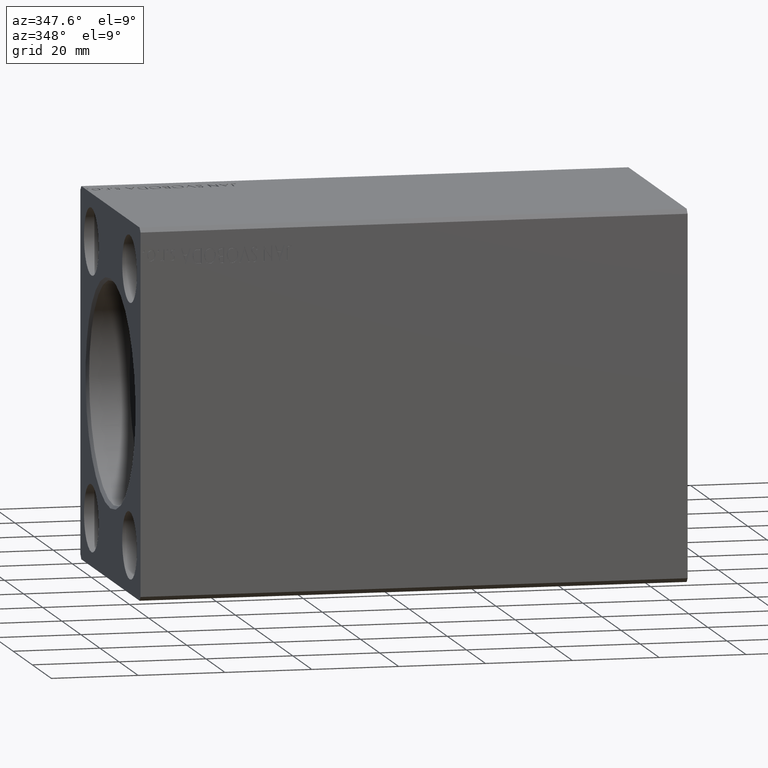
[diagram: clean part render]
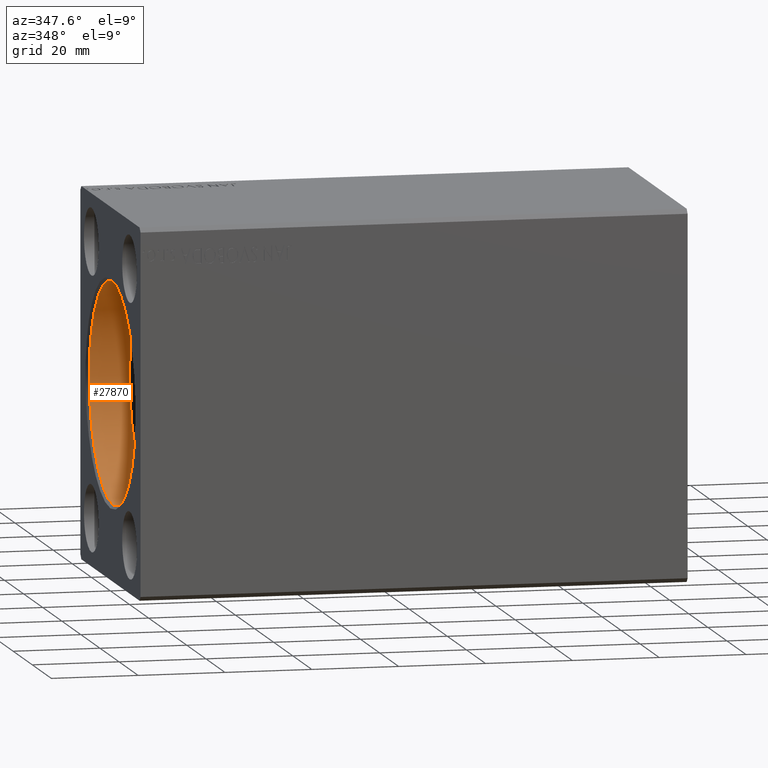
[diagram: same view with one face highlighted and labeled with its STEP entity id]
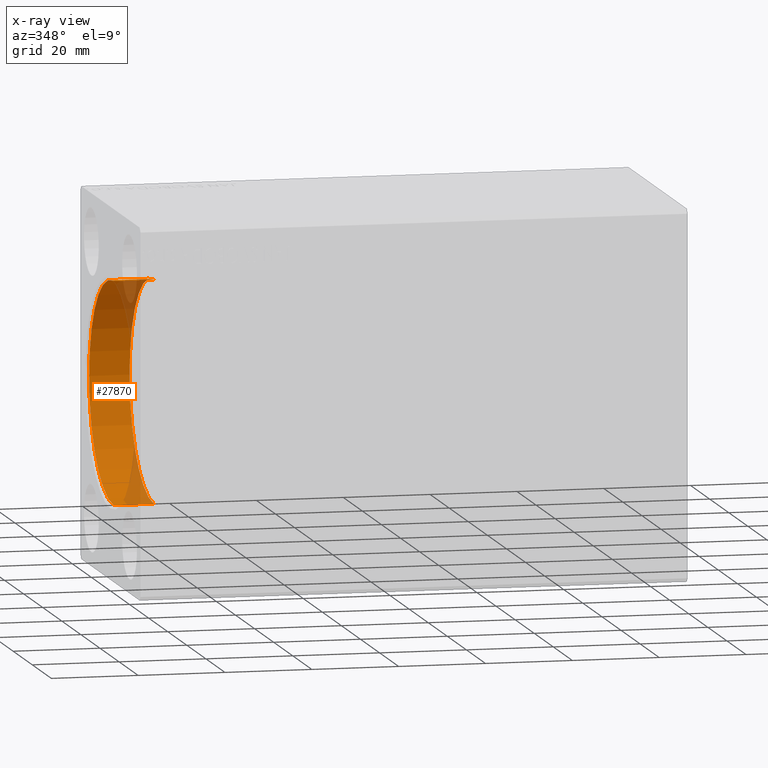
[diagram: x-ray of the same camera — body ghosted, the highlighted face saturated]
A machine part, auxiliary view. The second image highlights one B-rep face of the part: STEP entity #27870.
The next image is the same camera in x-ray: the body ghosted, the highlighted face saturated — about 15% of this face is hidden behind the body in this view.
In plain terms, the highlighted cylindrical surface (partial cylindrical patch) has radius 25.5 mm, axis along (-1, -0, -0).
Its self-contained STEP definition (entity closure, byte-faithful):
#1609 = DIRECTION ( 'NONE',  ( 0.000000000000000000, 0.000000000000000000, 1.000000000000000000 ) ) ;
#3416 = EDGE_LOOP ( 'NONE', ( #35514, #21662, #13050, #21675 ) ) ;
#4124 = AXIS2_PLACEMENT_3D ( 'NONE', #24393, #5433, #1609 ) ;
#5107 = DIRECTION ( 'NONE',  ( 0.000000000000000000, 0.000000000000000000, 1.000000000000000000 ) ) ;
#5433 = DIRECTION ( 'NONE',  ( -1.000000000000000000, 0.000000000000000000, 0.000000000000000000 ) ) ;
#7038 = VERTEX_POINT ( 'NONE', #41693 ) ;
#8273 = LINE ( 'NONE', #11494, #38647 ) ;
#9470 = CARTESIAN_POINT ( 'NONE',  ( 0.6999999999999922951, 3.122849337825750222E-15, -25.50000000000000000 ) ) ;
#11494 = CARTESIAN_POINT ( 'NONE',  ( 10.00000000000000000, 0.000000000000000000, 25.50000000000000000 ) ) ;
#11776 = DIRECTION ( 'NONE',  ( -1.000000000000000000, -0.000000000000000000, -0.000000000000000000 ) ) ;
#11924 = VECTOR ( 'NONE', #13614, 1000.000000000000000 ) ;
#11985 = CYLINDRICAL_SURFACE ( 'NONE', #14887, 25.50000000000000000 ) ;
#13050 = ORIENTED_EDGE ( 'NONE', *, *, #23148, .T. ) ;
#13614 = DIRECTION ( 'NONE',  ( -1.000000000000000000, -0.000000000000000000, -0.000000000000000000 ) ) ;
#14887 = AXIS2_PLACEMENT_3D ( 'NONE', #38415, #11776, #5107 ) ;
#17288 = CARTESIAN_POINT ( 'NONE',  ( 0.6999999999999922951, 0.000000000000000000, 0.000000000000000000 ) ) ;
#17912 = DIRECTION ( 'NONE',  ( 0.000000000000000000, 0.000000000000000000, -1.000000000000000000 ) ) ;
#17932 = AXIS2_PLACEMENT_3D ( 'NONE', #17288, #27384, #17912 ) ;
#19751 = VERTEX_POINT ( 'NONE', #37001 ) ;
#20709 = LINE ( 'NONE', #36399, #11924 ) ;
#21662 = ORIENTED_EDGE ( 'NONE', *, *, #37508, .F. ) ;
#21675 = ORIENTED_EDGE ( 'NONE', *, *, #41248, .T. ) ;
#22092 = FACE_OUTER_BOUND ( 'NONE', #3416, .T. ) ;
#23148 = EDGE_CURVE ( 'NONE', #7038, #19751, #8273, .T. ) ;
#24393 = CARTESIAN_POINT ( 'NONE',  ( 10.00000000000000000, 0.000000000000000000, 0.000000000000000000 ) ) ;
#25108 = EDGE_CURVE ( 'NONE', #36659, #38877, #20709, .T. ) ;
#27384 = DIRECTION ( 'NONE',  ( -1.000000000000000000, 0.000000000000000000, 0.000000000000000000 ) ) ;
#27870 = ADVANCED_FACE ( 'NONE', ( #22092 ), #11985, .F. ) ;
#32945 = CIRCLE ( 'NONE', #4124, 25.50000000000000000 ) ;
#34091 = DIRECTION ( 'NONE',  ( -1.000000000000000000, -0.000000000000000000, -0.000000000000000000 ) ) ;
#35074 = CIRCLE ( 'NONE', #17932, 25.50000000000000000 ) ;
#35514 = ORIENTED_EDGE ( 'NONE', *, *, #25108, .F. ) ;
#36399 = CARTESIAN_POINT ( 'NONE',  ( 10.00000000000000000, 3.122849337825750222E-15, -25.50000000000000000 ) ) ;
#36659 = VERTEX_POINT ( 'NONE', #40702 ) ;
#37001 = CARTESIAN_POINT ( 'NONE',  ( 0.6999999999999922951, 0.000000000000000000, 25.50000000000000000 ) ) ;
#37508 = EDGE_CURVE ( 'NONE', #7038, #36659, #32945, .T. ) ;
#38415 = CARTESIAN_POINT ( 'NONE',  ( 10.00000000000000000, 0.000000000000000000, 0.000000000000000000 ) ) ;
#38647 = VECTOR ( 'NONE', #34091, 1000.000000000000000 ) ;
#38877 = VERTEX_POINT ( 'NONE', #9470 ) ;
#40702 = CARTESIAN_POINT ( 'NONE',  ( 10.00000000000000000, 3.122849337825750222E-15, -25.50000000000000000 ) ) ;
#41248 = EDGE_CURVE ( 'NONE', #19751, #38877, #35074, .T. ) ;
#41693 = CARTESIAN_POINT ( 'NONE',  ( 10.00000000000000000, 0.000000000000000000, 25.50000000000000000 ) ) ;